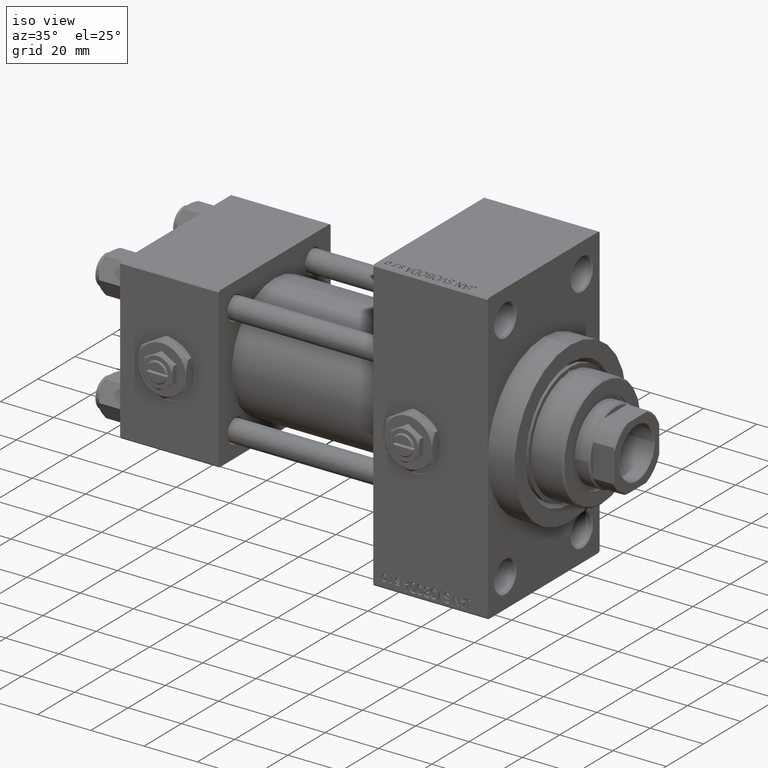
[diagram: clean part render]
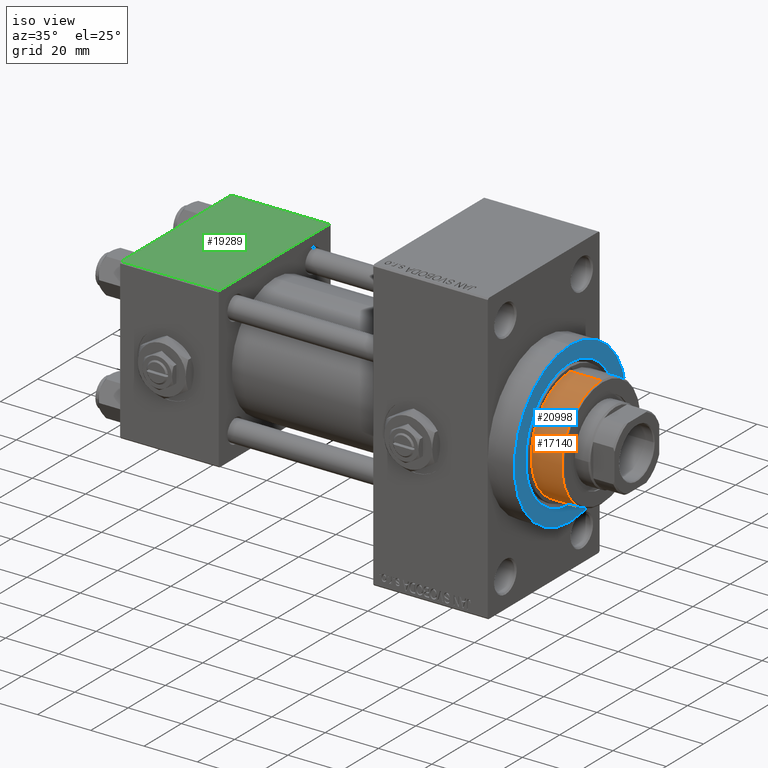
[diagram: same view with three faces highlighted in distinct colors, each labeled with its STEP entity id]
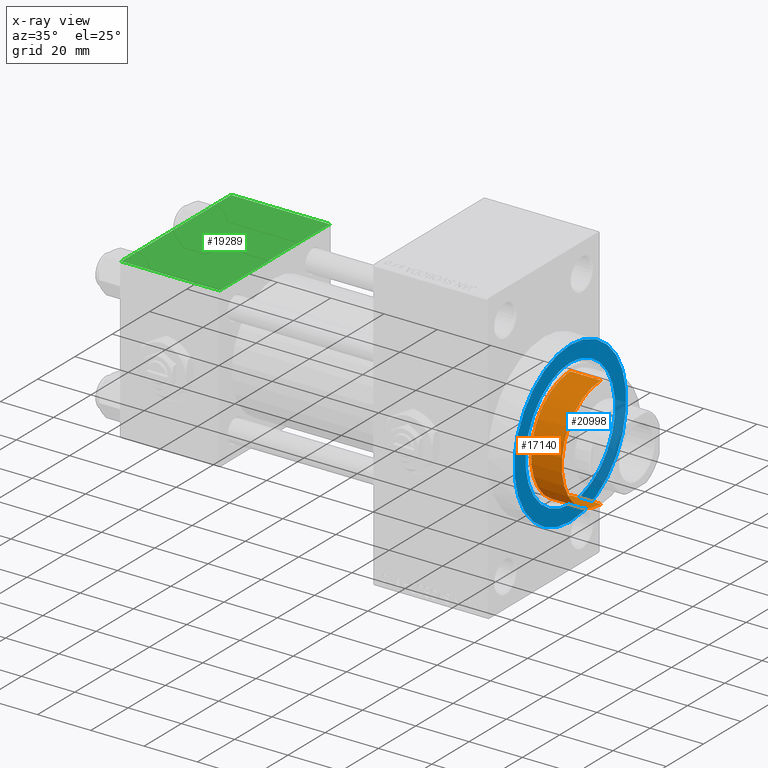
[diagram: x-ray of the same camera — body ghosted, the three highlighted faces saturated]
A machine part, iso view with three faces highlighted in distinct colors.
The next image is the same camera in x-ray (body ghosted, the three faces saturated) — at least one of them is partly hidden behind the body in this view.
Their STEP definitions:

[orange] entity #17140 — the highlighted cylindrical surface (partial cylindrical patch) has radius 21 mm, axis along (-1, 0, 0).
#1293 = AXIS2_PLACEMENT_3D ( 'NONE', #21495, #14944, #45291 ) ;
#2412 = EDGE_CURVE ( 'NONE', #35714, #8889, #18103, .T. ) ;
#2474 = ORIENTED_EDGE ( 'NONE', *, *, #47546, .T. ) ;
#6588 = DIRECTION ( 'NONE',  ( -0.000000000000000000, -0.000000000000000000, -1.000000000000000000 ) ) ;
#8212 = CARTESIAN_POINT ( 'NONE',  ( 21.00000000000000000, 2.571758278209441661E-15, 43.25999999999999801 ) ) ;
#8889 = VERTEX_POINT ( 'NONE', #25723 ) ;
#11358 = EDGE_CURVE ( 'NONE', #30526, #21046, #36516, .T. ) ;
#14264 = EDGE_CURVE ( 'NONE', #35714, #47006, #42989, .T. ) ;
#14586 = CARTESIAN_POINT ( 'NONE',  ( -21.00000000000000000, 0.000000000000000000, 54.75999999999999091 ) ) ;
#14731 = CARTESIAN_POINT ( 'NONE',  ( 0.000000000000000000, 0.000000000000000000, 43.25999999999999801 ) ) ;
#14944 = DIRECTION ( 'NONE',  ( 0.000000000000000000, 0.000000000000000000, 1.000000000000000000 ) ) ;
#14949 = VERTEX_POINT ( 'NONE', #20377 ) ;
#16421 = DIRECTION ( 'NONE',  ( 0.000000000000000000, 0.000000000000000000, -1.000000000000000000 ) ) ;
#16564 = AXIS2_PLACEMENT_3D ( 'NONE', #38677, #39679, #30898 ) ;
#17140 = ADVANCED_FACE ( 'NONE', ( #36692 ), #48217, .T. ) ;
#17896 = VECTOR ( 'NONE', #18348, 1000.000000000000000 ) ;
#18000 = DIRECTION ( 'NONE',  ( 1.000000000000000000, 0.000000000000000000, 0.000000000000000000 ) ) ;
#18103 = LINE ( 'NONE', #37409, #17896 ) ;
#18348 = DIRECTION ( 'NONE',  ( -0.000000000000000000, -0.000000000000000000, -1.000000000000000000 ) ) ;
#20185 = DIRECTION ( 'NONE',  ( 1.000000000000000000, 0.000000000000000000, 0.000000000000000000 ) ) ;
#20377 = CARTESIAN_POINT ( 'NONE',  ( -20.96385542168674831, 1.231570484631382412, 43.25999999999999801 ) ) ;
#20866 = ORIENTED_EDGE ( 'NONE', *, *, #47266, .T. ) ;
#21046 = VERTEX_POINT ( 'NONE', #35245 ) ;
#21495 = CARTESIAN_POINT ( 'NONE',  ( 0.000000000000000000, 0.000000000000000000, 43.25999999999999801 ) ) ;
#25723 = CARTESIAN_POINT ( 'NONE',  ( -21.00000000000000000, 0.000000000000000000, 43.25999999999999801 ) ) ;
#28412 = CARTESIAN_POINT ( 'NONE',  ( 0.000000000000000000, 0.000000000000000000, 55.26000000000000512 ) ) ;
#28678 = ORIENTED_EDGE ( 'NONE', *, *, #2412, .F. ) ;
#29289 = EDGE_CURVE ( 'NONE', #21046, #14949, #38186, .T. ) ;
#30526 = VERTEX_POINT ( 'NONE', #8212 ) ;
#30898 = DIRECTION ( 'NONE',  ( 1.000000000000000000, 0.000000000000000000, 0.000000000000000000 ) ) ;
#33002 = ORIENTED_EDGE ( 'NONE', *, *, #29289, .T. ) ;
#33181 = LINE ( 'NONE', #48480, #48530 ) ;
#34102 = CIRCLE ( 'NONE', #1293, 21.00000000000000000 ) ;
#35245 = CARTESIAN_POINT ( 'NONE',  ( 20.96385542168674831, 1.231570484631385076, 43.25999999999999801 ) ) ;
#35714 = VERTEX_POINT ( 'NONE', #14586 ) ;
#35994 = CARTESIAN_POINT ( 'NONE',  ( 0.000000000000000000, 0.000000000000000000, 54.75999999999999091 ) ) ;
#36440 = DIRECTION ( 'NONE',  ( -1.000000000000000000, 0.000000000000000000, 0.000000000000000000 ) ) ;
#36516 = CIRCLE ( 'NONE', #45312, 21.00000000000000000 ) ;
#36692 = FACE_OUTER_BOUND ( 'NONE', #42568, .T. ) ;
#37057 = DIRECTION ( 'NONE',  ( 0.000000000000000000, 0.000000000000000000, 1.000000000000000000 ) ) ;
#37409 = CARTESIAN_POINT ( 'NONE',  ( -21.00000000000000000, 0.000000000000000000, 55.26000000000000512 ) ) ;
#38186 = CIRCLE ( 'NONE', #16564, 21.00000000000000000 ) ;
#38677 = CARTESIAN_POINT ( 'NONE',  ( 0.000000000000000000, 0.000000000000000000, 43.25999999999999801 ) ) ;
#39679 = DIRECTION ( 'NONE',  ( 0.000000000000000000, 0.000000000000000000, 1.000000000000000000 ) ) ;
#39711 = DIRECTION ( 'NONE',  ( -0.000000000000000000, -0.000000000000000000, -1.000000000000000000 ) ) ;
#42024 = ORIENTED_EDGE ( 'NONE', *, *, #11358, .T. ) ;
#42568 = EDGE_LOOP ( 'NONE', ( #48368, #2474, #42024, #33002, #20866, #28678 ) ) ;
#42989 = CIRCLE ( 'NONE', #44600, 21.00000000000000000 ) ;
#44600 = AXIS2_PLACEMENT_3D ( 'NONE', #35994, #16421, #20185 ) ;
#45291 = DIRECTION ( 'NONE',  ( 1.000000000000000000, 0.000000000000000000, 0.000000000000000000 ) ) ;
#45312 = AXIS2_PLACEMENT_3D ( 'NONE', #14731, #37057, #18000 ) ;
#47006 = VERTEX_POINT ( 'NONE', #47425 ) ;
#47266 = EDGE_CURVE ( 'NONE', #14949, #8889, #34102, .T. ) ;
#47425 = CARTESIAN_POINT ( 'NONE',  ( 21.00000000000000000, 2.571758278209441661E-15, 54.75999999999999091 ) ) ;
#47546 = EDGE_CURVE ( 'NONE', #47006, #30526, #33181, .T. ) ;
#48217 = CYLINDRICAL_SURFACE ( 'NONE', #49537, 21.00000000000000000 ) ;
#48368 = ORIENTED_EDGE ( 'NONE', *, *, #14264, .T. ) ;
#48480 = CARTESIAN_POINT ( 'NONE',  ( 21.00000000000000000, 2.571758278209441661E-15, 55.26000000000000512 ) ) ;
#48530 = VECTOR ( 'NONE', #6588, 1000.000000000000000 ) ;
#49537 = AXIS2_PLACEMENT_3D ( 'NONE', #28412, #39711, #36440 ) ;

[blue] entity #20998 — the highlighted planar face has unit normal (1, 0, 0).
#777 = EDGE_CURVE ( 'NONE', #31212, #18310, #28231, .T. ) ;
#1197 = CARTESIAN_POINT ( 'NONE',  ( 148.0000000000000284, 0.000000000000000000, 30.00000000000000000 ) ) ;
#3380 = CARTESIAN_POINT ( 'NONE',  ( 148.0000000000000284, 2.939152317953644345E-15, 23.99999999999996803 ) ) ;
#4146 = VERTEX_POINT ( 'NONE', #3380 ) ;
#4598 = AXIS2_PLACEMENT_3D ( 'NONE', #20339, #46929, #8556 ) ;
#6797 = CARTESIAN_POINT ( 'NONE',  ( 148.0000000000000284, 0.000000000000000000, -23.99999999999996803 ) ) ;
#6802 = CARTESIAN_POINT ( 'NONE',  ( 148.0000000000000284, 3.673940397442059178E-15, -30.00000000000000000 ) ) ;
#7928 = FACE_OUTER_BOUND ( 'NONE', #19851, .T. ) ;
#8556 = DIRECTION ( 'NONE',  ( 0.000000000000000000, 0.000000000000000000, -1.000000000000000000 ) ) ;
#10023 = ORIENTED_EDGE ( 'NONE', *, *, #777, .T. ) ;
#13962 = AXIS2_PLACEMENT_3D ( 'NONE', #31477, #23720, #19959 ) ;
#14709 = CARTESIAN_POINT ( 'NONE',  ( 148.0000000000000284, 0.000000000000000000, 0.000000000000000000 ) ) ;
#15105 = ORIENTED_EDGE ( 'NONE', *, *, #23994, .T. ) ;
#16840 = EDGE_LOOP ( 'NONE', ( #41164, #36181 ) ) ;
#18310 = VERTEX_POINT ( 'NONE', #1197 ) ;
#19459 = AXIS2_PLACEMENT_3D ( 'NONE', #14709, #45300, #19950 ) ;
#19851 = EDGE_LOOP ( 'NONE', ( #15105, #10023 ) ) ;
#19950 = DIRECTION ( 'NONE',  ( 0.000000000000000000, 0.000000000000000000, -1.000000000000000000 ) ) ;
#19959 = DIRECTION ( 'NONE',  ( 0.000000000000000000, 0.000000000000000000, -1.000000000000000000 ) ) ;
#20219 = AXIS2_PLACEMENT_3D ( 'NONE', #33265, #41299, #36793 ) ;
#20339 = CARTESIAN_POINT ( 'NONE',  ( 148.0000000000000284, 0.000000000000000000, 0.000000000000000000 ) ) ;
#20998 = ADVANCED_FACE ( 'NONE', ( #42296, #7928 ), #30982, .T. ) ;
#23720 = DIRECTION ( 'NONE',  ( 1.000000000000000000, 0.000000000000000000, 0.000000000000000000 ) ) ;
#23994 = EDGE_CURVE ( 'NONE', #18310, #31212, #25984, .T. ) ;
#25984 = CIRCLE ( 'NONE', #13962, 30.00000000000000000 ) ;
#26226 = CIRCLE ( 'NONE', #4598, 23.99999999999996803 ) ;
#26444 = VERTEX_POINT ( 'NONE', #6797 ) ;
#28231 = CIRCLE ( 'NONE', #20219, 30.00000000000000000 ) ;
#30982 = PLANE ( 'NONE',  #19459 ) ;
#31212 = VERTEX_POINT ( 'NONE', #6802 ) ;
#31362 = CIRCLE ( 'NONE', #33799, 23.99999999999996803 ) ;
#31477 = CARTESIAN_POINT ( 'NONE',  ( 148.0000000000000284, 0.000000000000000000, 0.000000000000000000 ) ) ;
#31706 = EDGE_CURVE ( 'NONE', #4146, #26444, #26226, .T. ) ;
#33265 = CARTESIAN_POINT ( 'NONE',  ( 148.0000000000000284, 0.000000000000000000, 0.000000000000000000 ) ) ;
#33799 = AXIS2_PLACEMENT_3D ( 'NONE', #35470, #43009, #39751 ) ;
#35470 = CARTESIAN_POINT ( 'NONE',  ( 148.0000000000000284, 0.000000000000000000, 0.000000000000000000 ) ) ;
#36181 = ORIENTED_EDGE ( 'NONE', *, *, #31706, .T. ) ;
#36793 = DIRECTION ( 'NONE',  ( 0.000000000000000000, 0.000000000000000000, -1.000000000000000000 ) ) ;
#39751 = DIRECTION ( 'NONE',  ( 0.000000000000000000, 0.000000000000000000, -1.000000000000000000 ) ) ;
#41164 = ORIENTED_EDGE ( 'NONE', *, *, #44426, .T. ) ;
#41299 = DIRECTION ( 'NONE',  ( 1.000000000000000000, 0.000000000000000000, 0.000000000000000000 ) ) ;
#42296 = FACE_BOUND ( 'NONE', #16840, .T. ) ;
#43009 = DIRECTION ( 'NONE',  ( -1.000000000000000000, -0.000000000000000000, -0.000000000000000000 ) ) ;
#44426 = EDGE_CURVE ( 'NONE', #26444, #4146, #31362, .T. ) ;
#45300 = DIRECTION ( 'NONE',  ( 1.000000000000000000, 0.000000000000000000, 0.000000000000000000 ) ) ;
#46929 = DIRECTION ( 'NONE',  ( -1.000000000000000000, -0.000000000000000000, -0.000000000000000000 ) ) ;

[green] entity #19289 — the highlighted planar face has unit normal (0, 0, -1).
#77 = VERTEX_POINT ( 'NONE', #5069 ) ;
#165 = DIRECTION ( 'NONE',  ( 0.000000000000000000, 1.156482317317871725E-16, -1.000000000000000000 ) ) ;
#661 = CARTESIAN_POINT ( 'NONE',  ( 37.00000000000000000, 29.99999999999999289, 30.00000000000000000 ) ) ;
#1040 = DIRECTION ( 'NONE',  ( 0.000000000000000000, -1.000000000000000000, -1.156482317317871725E-16 ) ) ;
#5069 = CARTESIAN_POINT ( 'NONE',  ( 0.000000000000000000, -29.49999999999998579, 29.99999999999999289 ) ) ;
#5559 = CARTESIAN_POINT ( 'NONE',  ( 0.000000000000000000, 29.99999999999999289, 30.00000000000000000 ) ) ;
#5967 = CARTESIAN_POINT ( 'NONE',  ( 0.000000000000000000, 29.49999999999999289, 30.00000000000000000 ) ) ;
#7058 = EDGE_CURVE ( 'NONE', #37496, #77, #31873, .T. ) ;
#7744 = LINE ( 'NONE', #33579, #31728 ) ;
#7930 = PLANE ( 'NONE',  #39042 ) ;
#13449 = ORIENTED_EDGE ( 'NONE', *, *, #38930, .F. ) ;
#13521 = LINE ( 'NONE', #5967, #38836 ) ;
#14993 = DIRECTION ( 'NONE',  ( 0.000000000000000000, -1.000000000000000000, -1.156482317317871725E-16 ) ) ;
#18137 = ORIENTED_EDGE ( 'NONE', *, *, #24851, .T. ) ;
#18524 = DIRECTION ( 'NONE',  ( 1.000000000000000000, 0.000000000000000000, 0.000000000000000000 ) ) ;
#19289 = ADVANCED_FACE ( 'NONE', ( #39507 ), #7930, .F. ) ;
#19698 = DIRECTION ( 'NONE',  ( 0.000000000000000000, 1.000000000000000000, 1.156482317317871725E-16 ) ) ;
#24851 = EDGE_CURVE ( 'NONE', #28486, #37496, #13521, .T. ) ;
#25942 = CARTESIAN_POINT ( 'NONE',  ( 37.00000000000000000, 29.49999999999999289, 30.00000000000000000 ) ) ;
#28037 = EDGE_CURVE ( 'NONE', #77, #46368, #7744, .T. ) ;
#28379 = VECTOR ( 'NONE', #1040, 1000.000000000000000 ) ;
#28486 = VERTEX_POINT ( 'NONE', #25942 ) ;
#28618 = CARTESIAN_POINT ( 'NONE',  ( 0.000000000000000000, 29.49999999999999289, 30.00000000000000000 ) ) ;
#29614 = VECTOR ( 'NONE', #14993, 1000.000000000000000 ) ;
#31728 = VECTOR ( 'NONE', #18524, 1000.000000000000000 ) ;
#31873 = LINE ( 'NONE', #5559, #28379 ) ;
#33579 = CARTESIAN_POINT ( 'NONE',  ( 37.00000000000000000, -29.50000000000000000, 29.99999999999999289 ) ) ;
#36984 = CARTESIAN_POINT ( 'NONE',  ( 37.00000000000000000, -29.49999999999998579, 29.99999999999999289 ) ) ;
#37496 = VERTEX_POINT ( 'NONE', #28618 ) ;
#38836 = VECTOR ( 'NONE', #44102, 1000.000000000000000 ) ;
#38930 = EDGE_CURVE ( 'NONE', #28486, #46368, #49344, .T. ) ;
#39042 = AXIS2_PLACEMENT_3D ( 'NONE', #661, #165, #19698 ) ;
#39507 = FACE_OUTER_BOUND ( 'NONE', #45161, .T. ) ;
#41150 = ORIENTED_EDGE ( 'NONE', *, *, #28037, .T. ) ;
#41668 = ORIENTED_EDGE ( 'NONE', *, *, #7058, .T. ) ;
#44102 = DIRECTION ( 'NONE',  ( -1.000000000000000000, 0.000000000000000000, 0.000000000000000000 ) ) ;
#45161 = EDGE_LOOP ( 'NONE', ( #41668, #41150, #13449, #18137 ) ) ;
#46368 = VERTEX_POINT ( 'NONE', #36984 ) ;
#48851 = CARTESIAN_POINT ( 'NONE',  ( 37.00000000000000000, 29.99999999999999289, 30.00000000000000000 ) ) ;
#49344 = LINE ( 'NONE', #48851, #29614 ) ;